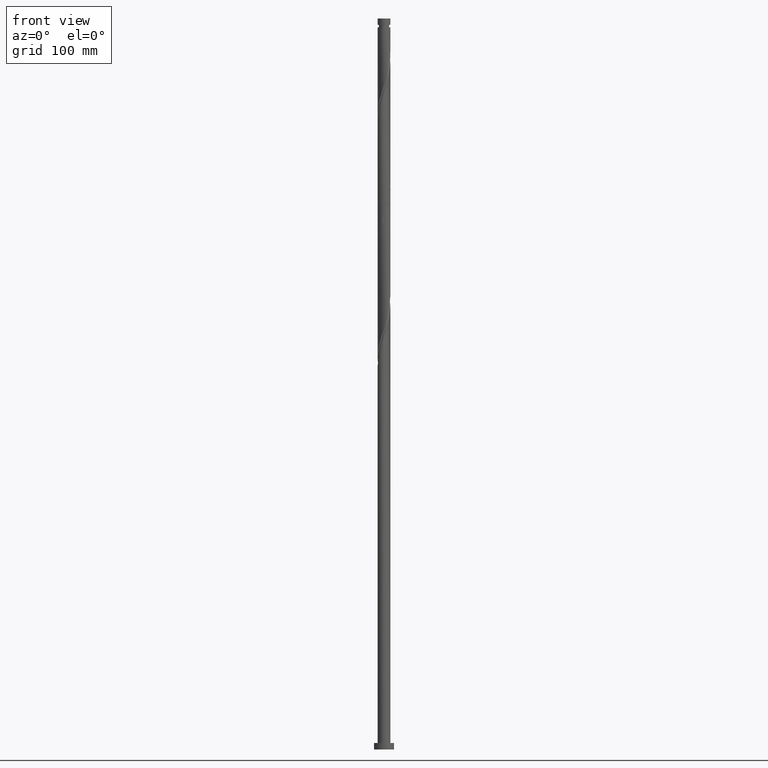
[diagram: clean part render]
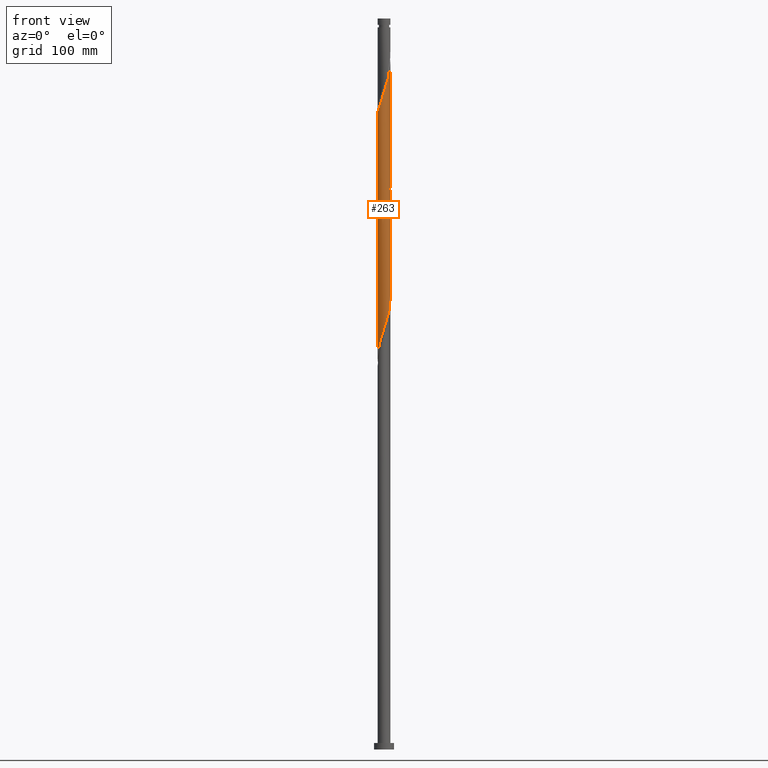
[diagram: same view with one face highlighted and labeled with its STEP entity id]
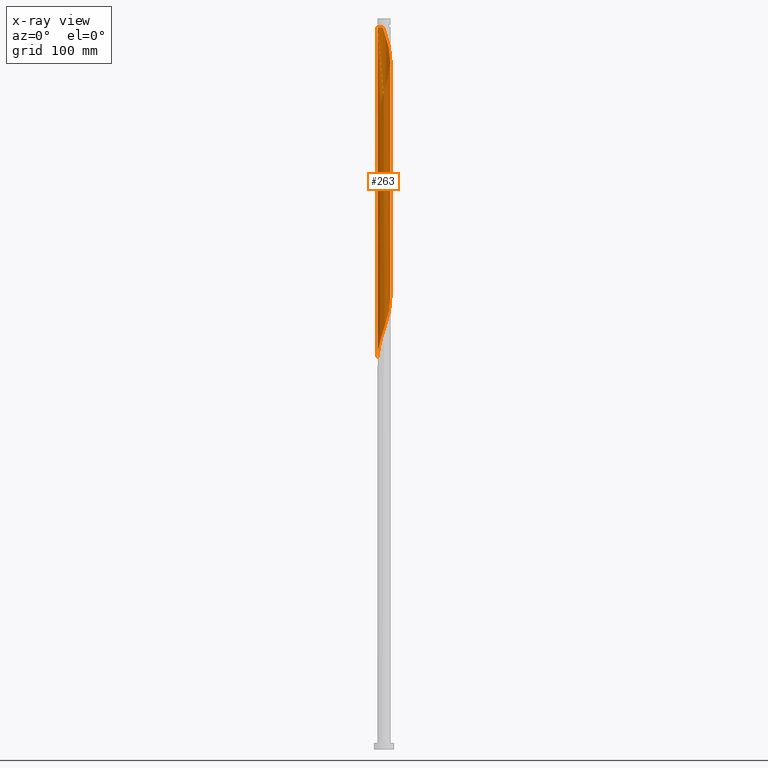
[diagram: x-ray of the same camera — body ghosted, the highlighted face saturated]
A machine part, front view. The second image highlights one B-rep face of the part: STEP entity #263.
The next image is the same camera in x-ray: the body ghosted, the highlighted face saturated — about 0% of this face is hidden behind the body in this view.
In plain terms, the highlighted cylindrical surface (bore or boss wall) has radius 7 mm, axis along (-0, -0, -1).
Its self-contained STEP definition (entity closure, byte-faithful):
#40 = CARTESIAN_POINT ( 'NONE',  ( 6.951601197858994219, -0.8217303608394779246, 625.4343165589231148 ) ) ;
#46 = CARTESIAN_POINT ( 'NONE',  ( -6.308128858367879843, -3.034387962378323866, 695.6097551554144047 ) ) ;
#49 = CARTESIAN_POINT ( 'NONE',  ( 6.290576909859326271, 3.124913522896254570, 637.7150183133089740 ) ) ;
#63 = CARTESIAN_POINT ( 'NONE',  ( 6.841759682355773364, 1.479974475756596020, 632.4518604185723234 ) ) ;
#73 = CARTESIAN_POINT ( 'NONE',  ( -6.056692303213034201, 3.557094422226541486, 683.3290534010284318 ) ) ;
#74 = CARTESIAN_POINT ( 'NONE',  ( 7.000000000000000000, -5.254906820071000449E-15, 627.9318627947997129 ) ) ;
#82 = CARTESIAN_POINT ( 'NONE',  ( 2.594768635045699767, -6.527144713810034915, 602.6272990150637270 ) ) ;
#91 = CARTESIAN_POINT ( 'NONE',  ( 1.961418218361535848, -6.744574186493524692, 725.4343165589230011 ) ) ;
#99 = CARTESIAN_POINT ( 'NONE',  ( -4.573537337246525780, -5.330966010888390727, 704.3816849799756028 ) ) ;
#103 = CARTESIAN_POINT ( 'NONE',  ( 5.690437779000081520, 4.117688704572482372, 507.8904569098003776 ) ) ;
#112 = CARTESIAN_POINT ( 'NONE',  ( 4.935078339393903946, -4.998144072401320415, 735.9606323483968708 ) ) ;
#123 = CARTESIAN_POINT ( 'NONE',  ( 4.573537337246527557, 5.330966010888388951, 771.0483516466425726 ) ) ;
#133 = CARTESIAN_POINT ( 'NONE',  ( 6.951601197858994219, -0.8217303608394779246, 492.1009832255898573 ) ) ;
#134 = CARTESIAN_POINT ( 'NONE',  ( 6.308128858367881620, 3.034387962378322090, 762.2764218220811472 ) ) ;
#145 = CARTESIAN_POINT ( 'NONE',  ( 6.721538046192510052, -1.954718980719880594, 488.5922112957653098 ) ) ;
#149 = CARTESIAN_POINT ( 'NONE',  ( 5.312758059196990068, 4.557916388486895620, 509.6448428747126513 ) ) ;
#158 = CARTESIAN_POINT ( 'NONE',  ( 6.964393863783802097, 0.9130501051561868975, 497.3641411203267353 ) ) ;
#160 = CARTESIAN_POINT ( 'NONE',  ( -4.490090583436016303, -5.370203585762758358, 579.8202814712037707 ) ) ;
#172 = CARTESIAN_POINT ( 'NONE',  ( 6.308128858367869185, -3.034387962378319425, 485.0834393659406487 ) ) ;
#185 = DIRECTION ( 'NONE',  ( -1.000000000000000000, 0.000000000000000000, 0.000000000000000000 ) ) ;
#191 = CARTESIAN_POINT ( 'NONE',  ( 7.000000000000000000, 8.572527594031473190E-16, 790.3465972606775267 ) ) ;
#214 = CARTESIAN_POINT ( 'NONE',  ( 4.935078339393898617, 4.998144072401310645, 644.7325621729586373 ) ) ;
#219 = CARTESIAN_POINT ( 'NONE',  ( -7.000000000000007994, -0.4122904922740646683, 687.3451921740742137 ) ) ;
#223 = CARTESIAN_POINT ( 'NONE',  ( 3.633712082764799511, -6.011038087053209189, 606.1360709448881607 ) ) ;
#233 = CARTESIAN_POINT ( 'NONE',  ( 5.312758059196990068, 4.557916388486895620, 642.9781762080459657 ) ) ;
#244 = CARTESIAN_POINT ( 'NONE',  ( 4.045102827478138430, 5.742263099124208736, 648.2413341027830711 ) ) ;
#254 = CARTESIAN_POINT ( 'NONE',  ( 1.961418218361540067, 6.744574186493514034, 655.2588779624318249 ) ) ;
#263 = ADVANCED_FACE ( 'NONE', ( #867 ), #1365, .T. ) ;
#266 = CARTESIAN_POINT ( 'NONE',  ( -0.3348164892539722826, 7.016006007904985964, 528.9430884887478896 ) ) ;
#271 = CARTESIAN_POINT ( 'NONE',  ( 1.485046663019567115, 6.865207847770507854, 781.5746674361159876 ) ) ;
#281 = CARTESIAN_POINT ( 'NONE',  ( 0.8245466055370141989, -6.975425813506492823, 721.9255446290986811 ) ) ;
#294 = CARTESIAN_POINT ( 'NONE',  ( 3.633712082764810170, 6.011038087053212742, 774.5571235764668927 ) ) ;
#307 = CARTESIAN_POINT ( 'NONE',  ( -0.2448650581415163785, 6.995715910705745166, 786.8378253308529793 ) ) ;
#311 = CARTESIAN_POINT ( 'NONE',  ( 3.544945141351491191, 6.036005628294960346, 516.6623867343618031 ) ) ;
#321 = EDGE_CURVE ( 'NONE', #1554, #647, #1452, .T. ) ;
#328 = ORIENTED_EDGE ( 'NONE', *, *, #775, .T. ) ;
#330 = CARTESIAN_POINT ( 'NONE',  ( -6.504851205393538116, -2.585906184626627358, 569.2939656817302421 ) ) ;
#342 = CARTESIAN_POINT ( 'NONE',  ( 0.000000000000000000, 0.000000000000000000, 790.3465972606775267 ) ) ;
#352 = CARTESIAN_POINT ( 'NONE',  ( -5.388608415490185877, 4.505479078737748999, 546.4869481378706269 ) ) ;
#376 = LINE ( 'NONE', #1545, #444 ) ;
#378 = CARTESIAN_POINT ( 'NONE',  ( -6.721538046192521598, -1.954718980719879262, 692.1009832255900847 ) ) ;
#381 = CARTESIAN_POINT ( 'NONE',  ( 2.503102836793194452, 6.537161171979611218, 653.5044919975196080 ) ) ;
#390 = CARTESIAN_POINT ( 'NONE',  ( -6.951601197858994219, 0.8217303608394785908, 692.1009832255898573 ) ) ;
#392 = CARTESIAN_POINT ( 'NONE',  ( 2.039907649032629777, -6.696176280790267832, 600.8729130501511690 ) ) ;
#402 = CARTESIAN_POINT ( 'NONE',  ( 4.490090583436019855, 5.370203585762756582, 646.4869481378702858 ) ) ;
#412 = CARTESIAN_POINT ( 'NONE',  ( 5.690437779000081520, 4.117688704572482372, 641.2237902431338625 ) ) ;
#414 = CARTESIAN_POINT ( 'NONE',  ( 5.388608415490182324, -4.505479078737752552, 613.1536148045373693 ) ) ;
#422 = CARTESIAN_POINT ( 'NONE',  ( -2.594768635045700655, 6.527144713810034915, 669.2939656817301284 ) ) ;
#423 = CARTESIAN_POINT ( 'NONE',  ( -2.039907649032629777, 6.696176280790267832, 534.2062463834845403 ) ) ;
#444 = VECTOR ( 'NONE', #682, 1000.000000000000000 ) ;
#447 = ORIENTED_EDGE ( 'NONE', *, *, #321, .F. ) ;
#449 = CARTESIAN_POINT ( 'NONE',  ( 6.841759682355785799, -1.479974475756601349, 748.2413341027829574 ) ) ;
#453 = EDGE_CURVE ( 'NONE', #2102, #2006, #2245, .T. ) ;
#460 = CARTESIAN_POINT ( 'NONE',  ( 0.3348164892539742810, 7.016006007904993957, 785.0834393659406487 ) ) ;
#461 = CARTESIAN_POINT ( 'NONE',  ( -6.964393863783801208, -0.9130501051561881187, 430.6974744536600497 ) ) ;
#471 = CARTESIAN_POINT ( 'NONE',  ( 4.981072876368362934, 4.918222544813072084, 769.2939656817303558 ) ) ;
#475 = CARTESIAN_POINT ( 'NONE',  ( 1.392982411949278188, 6.859999999999997655, 523.6799305940108979 ) ) ;
#484 = CARTESIAN_POINT ( 'NONE',  ( -4.981072876368351388, 4.918222544813064978, 544.7325621729581826 ) ) ;
#496 = CARTESIAN_POINT ( 'NONE',  ( 5.388608415490182324, -4.505479078737752552, 479.8202814712039412 ) ) ;
#497 = CARTESIAN_POINT ( 'NONE',  ( -6.992042790319737300, -0.3336729211934430506, 562.2764218220810335 ) ) ;
#509 = CARTESIAN_POINT ( 'NONE',  ( 6.992042790319737300, 0.3336729211934406636, 495.6097551554144047 ) ) ;
#510 = CARTESIAN_POINT ( 'NONE',  ( -6.308128858367869185, 3.034387962378320314, 551.7501060326072775 ) ) ;
#522 = CARTESIAN_POINT ( 'NONE',  ( -3.544945141351490747, -6.036005628294960346, 583.3290534010282045 ) ) ;
#545 = CARTESIAN_POINT ( 'NONE',  ( -7.000000000000011546, 2.328879158895086157E-15, 686.0946650598888255 ) ) ;
#557 = LINE ( 'NONE', #1631, #1099 ) ;
#566 = CARTESIAN_POINT ( 'NONE',  ( 6.721538046192510052, -1.954718980719880594, 621.9255446290986811 ) ) ;
#567 = CARTESIAN_POINT ( 'NONE',  ( -4.103624710005659537, 5.671002048970794185, 541.2237902431336352 ) ) ;
#570 = CARTESIAN_POINT ( 'NONE',  ( -7.000000000000000000, 2.567738559807420566E-15, 427.9318627947997129 ) ) ;
#580 = CARTESIAN_POINT ( 'NONE',  ( 6.883510678862315935, -1.397756458909656052, 623.6799305940107843 ) ) ;
#592 = CARTESIAN_POINT ( 'NONE',  ( 1.392982411949278188, 6.859999999999997655, 657.0132639273440418 ) ) ;
#593 = CARTESIAN_POINT ( 'NONE',  ( -0.2448650581415229843, -6.995715910705733620, 593.8553691905021878 ) ) ;
#598 = CARTESIAN_POINT ( 'NONE',  ( 2.594768635045706429, 6.527144713810041132, 778.0658955062914401 ) ) ;
#607 = CARTESIAN_POINT ( 'NONE',  ( 4.103624710005671972, 5.671002048970801290, 772.8027376115545621 ) ) ;
#621 = AXIS2_PLACEMENT_3D ( 'NONE', #2052, #703, #1399 ) ;
#631 = CARTESIAN_POINT ( 'NONE',  ( 6.056692303213043971, 3.557094422226543706, 764.0308077869933641 ) ) ;
#635 = CARTESIAN_POINT ( 'NONE',  ( 0.8245466055370164193, 6.975425813506482164, 525.4343165589233422 ) ) ;
#643 = CARTESIAN_POINT ( 'NONE',  ( 0.3348164892539703397, -7.016006007904985964, 462.2764218220810903 ) ) ;
#644 = CARTESIAN_POINT ( 'NONE',  ( 3.044787455224846173, -6.329748157465722613, 728.9430884887476623 ) ) ;
#647 = VERTEX_POINT ( 'NONE', #830 ) ;
#658 = CARTESIAN_POINT ( 'NONE',  ( 4.045102827478138430, 5.742263099124208736, 514.9080007694495862 ) ) ;
#670 = CARTESIAN_POINT ( 'NONE',  ( 4.981072876368351388, -4.918222544813064978, 478.0658955062914970 ) ) ;
#682 = DIRECTION ( 'NONE',  ( -0.000000000000000000, -0.000000000000000000, -1.000000000000000000 ) ) ;
#700 = CARTESIAN_POINT ( 'NONE',  ( -5.990507344429702563, -3.621301113734368027, 572.8027376115549032 ) ) ;
#703 = DIRECTION ( 'NONE',  ( -0.000000000000000000, -0.000000000000000000, -1.000000000000000000 ) ) ;
#715 = CARTESIAN_POINT ( 'NONE',  ( -4.981072876368351388, 4.918222544813064978, 678.0658955062915538 ) ) ;
#727 = CARTESIAN_POINT ( 'NONE',  ( 6.056692303213034201, -3.557094422226541486, 616.6623867343618031 ) ) ;
#737 = CARTESIAN_POINT ( 'NONE',  ( -6.056692303213043083, -3.557094422226544594, 697.3641411203265079 ) ) ;
#752 = CARTESIAN_POINT ( 'NONE',  ( -1.485046663019560009, 6.865207847770499860, 532.4518604185724371 ) ) ;
#759 = CARTESIAN_POINT ( 'NONE',  ( -1.392982411949238886, 6.859999999999932818, 790.3465972606775267 ) ) ;
#761 = EDGE_CURVE ( 'NONE', #647, #2126, #1085, .T. ) ;
#763 = CARTESIAN_POINT ( 'NONE',  ( 4.573537337246519563, -5.330966010888384510, 609.6448428747128219 ) ) ;
#775 = EDGE_CURVE ( 'NONE', #2102, #1313, #557, .T. ) ;
#776 = CARTESIAN_POINT ( 'NONE',  ( -2.503102836793190900, -6.537161171979612995, 586.8378253308530930 ) ) ;
#782 = CARTESIAN_POINT ( 'NONE',  ( 5.990507344429710557, -3.621301113734379129, 741.2237902431337488 ) ) ;
#793 = CARTESIAN_POINT ( 'NONE',  ( 2.039907649032639547, 6.696176280790275825, 779.8202814712038844 ) ) ;
#798 = CARTESIAN_POINT ( 'NONE',  ( 6.290576909859326271, 3.124913522896254570, 504.3816849799758302 ) ) ;
#808 = CARTESIAN_POINT ( 'NONE',  ( 6.992042790319750623, -0.3336729211934446049, 751.7501060326075049 ) ) ;
#820 = CARTESIAN_POINT ( 'NONE',  ( 6.719125500927755290, -2.046898846357010804, 746.4869481378702858 ) ) ;
#829 = CARTESIAN_POINT ( 'NONE',  ( 6.559565413522705946, -2.511681502530104915, 486.8378253308531498 ) ) ;
#830 = CARTESIAN_POINT ( 'NONE',  ( -6.999999999999999112, -2.537881134693381033E-16, 694.5985294614664554 ) ) ;
#831 = CARTESIAN_POINT ( 'NONE',  ( -5.312758059196989180, -4.557916388486897397, 576.3115095413793370 ) ) ;
#840 = CARTESIAN_POINT ( 'NONE',  ( 4.103624710005656873, -5.671002048970795961, 474.5571235764670064 ) ) ;
#851 = CARTESIAN_POINT ( 'NONE',  ( 7.000000000000000000, -5.254906820071000449E-15, 627.9318627947997129 ) ) ;
#852 = CARTESIAN_POINT ( 'NONE',  ( -3.544945141351490747, -6.036005628294960346, 449.9957200676951175 ) ) ;
#853 = CARTESIAN_POINT ( 'NONE',  ( -6.056692303213034201, 3.557094422226541486, 549.9957200676951743 ) ) ;
#867 = FACE_OUTER_BOUND ( 'NONE', #2045, .T. ) ;
#876 = CARTESIAN_POINT ( 'NONE',  ( -7.019691716855676944, 0.2457042627693022119, 560.5220358571689303 ) ) ;
#902 = CARTESIAN_POINT ( 'NONE',  ( 3.544945141351491191, 6.036005628294960346, 649.9957200676950606 ) ) ;
#912 = CARTESIAN_POINT ( 'NONE',  ( 6.559565413522705946, -2.511681502530104915, 620.1711586641864642 ) ) ;
#923 = CARTESIAN_POINT ( 'NONE',  ( 5.990507344429705228, 3.621301113734365362, 639.4694042782214183 ) ) ;
#924 = CARTESIAN_POINT ( 'NONE',  ( 6.999999999999998224, -0.4122904922740521227, 626.6813356806143247 ) ) ;
#931 = DIRECTION ( 'NONE',  ( -0.000000000000000000, -0.000000000000000000, -1.000000000000000000 ) ) ;
#943 = CARTESIAN_POINT ( 'NONE',  ( 3.044787455224844841, 6.329748157465714620, 651.7501060326075049 ) ) ;
#954 = CARTESIAN_POINT ( 'NONE',  ( 0.2448650581415219019, 6.995715910705731844, 527.1887025238355591 ) ) ;
#961 = CARTESIAN_POINT ( 'NONE',  ( 1.392982411949276633, -6.860000000000007425, 723.6799305940110116 ) ) ;
#965 = CARTESIAN_POINT ( 'NONE',  ( 4.935078339393898617, 4.998144072401310645, 511.3992288396249819 ) ) ;
#971 = CARTESIAN_POINT ( 'NONE',  ( 0.2448650581415204308, -6.995715910705745166, 720.1711586641863505 ) ) ;
#982 = CARTESIAN_POINT ( 'NONE',  ( 6.951601197859005765, 0.8217303608394754821, 755.2588779624319386 ) ) ;
#990 = CIRCLE ( 'NONE', #1814, 6.999999999999915623 ) ;
#996 = CARTESIAN_POINT ( 'NONE',  ( 3.114240358905250527, -6.269091400431619832, 471.0483516466425158 ) ) ;
#997 = CARTESIAN_POINT ( 'NONE',  ( 6.964393863783810978, -0.9130501051561915604, 749.9957200676948332 ) ) ;
#1008 = CARTESIAN_POINT ( 'NONE',  ( -4.573537337246519563, 5.330966010888384510, 542.9781762080460794 ) ) ;
#1013 = CARTESIAN_POINT ( 'NONE',  ( 4.490090583436019855, 5.370203585762756582, 513.1536148045371419 ) ) ;
#1032 = CARTESIAN_POINT ( 'NONE',  ( 6.883510678862315935, -1.397756458909656052, 490.3465972606776972 ) ) ;
#1051 = ORIENTED_EDGE ( 'NONE', *, *, #1434, .T. ) ;
#1054 = DIRECTION ( 'NONE',  ( -0.000000000000000000, -0.000000000000000000, -1.000000000000000000 ) ) ;
#1073 = CARTESIAN_POINT ( 'NONE',  ( -3.114240358905250527, 6.269091400431618943, 671.0483516466425726 ) ) ;
#1082 = CARTESIAN_POINT ( 'NONE',  ( 1.485046663019558455, -6.865207847770500749, 599.1185270852391795 ) ) ;
#1085 =( BOUNDED_CURVE ( )  B_SPLINE_CURVE ( 2, ( #1348, #1694, #390, #1242, #1439, #1797, #1976, #73, #1786, #2147, #715, #2125, #2101, #1447, #1073, #422, #2112, #1092, #1106, #1774, #1455, #1116, #592, #254, #381, #943, #902, #244, #402, #214, #233, #412, #923, #49, #1592, #1930, #63, #1423, #1272, #1262, #1283 ),
 .UNSPECIFIED., .F., .T. ) 
 B_SPLINE_CURVE_WITH_KNOTS ( ( 3, 2, 2, 2, 2, 2, 2, 2, 2, 2, 2, 2, 2, 2, 2, 2, 2, 2, 2, 2, 3 ),
 ( 0.4295295809515956020, 0.4342105263157894912, 0.4407894736842105088, 0.4473684210526315819, 0.4539473684210526550, 0.4605263157894736725, 0.4671052631578947456, 0.4736842105263157632, 0.4802631578947368363, 0.4868421052631579093, 0.4934210526315789269, 0.5000000000000000000, 0.5065789473684210176, 0.5131578947368421462, 0.5197368421052631637, 0.5263157894736841813, 0.5328947368421053099, 0.5394736842105263275, 0.5460526315789473450, 0.5526315789473684736, 0.5545295809515956575 ),
 .UNSPECIFIED. ) 
 CURVE ( )  GEOMETRIC_REPRESENTATION_ITEM ( )  RATIONAL_B_SPLINE_CURVE ( ( 0.9078162034606285236, 0.9068816855934357379, 0.9090909090909574664, 0.9059859027333843073, 0.9090909090909574664, 0.9059859027333843073, 0.9090909090909574664, 0.9059859027333843073, 0.9090909090909574664, 0.9059859027333843073, 0.9090909090909574664, 0.9059859027333843073, 0.9090909090909574664, 0.9059859027333843073, 0.9090909090909574664, 0.9059859027333843073, 0.9090909090909574664, 0.9059859027333843073, 0.9090909090909574664, 0.9059859027333843073, 0.9090909090909574664, 0.9059859027333843073, 0.9090909090909574664, 0.9059859027333843073, 0.9090909090909574664, 0.9059859027333843073, 0.9090909090909574664, 0.9059859027333843073, 0.9090909090909574664, 0.9059859027333843073, 0.9090909090909574664, 0.9059859027333843073, 0.9090909090909574664, 0.9059859027333843073, 0.9090909090909574664, 0.9059859027333843073, 0.9090909090909574664, 0.9059859027333843073, 0.9090909090909574664, 0.9081951262309060358, 0.9078162034606285236 ) ) 
 REPRESENTATION_ITEM ( '' )  );
#1089 = CARTESIAN_POINT ( 'NONE',  ( -3.044787455224847506, -6.329748157465714620, 585.0834393659407624 ) ) ;
#1092 = CARTESIAN_POINT ( 'NONE',  ( -1.485046663019560009, 6.865207847770499860, 665.7851937519056946 ) ) ;
#1099 = VECTOR ( 'NONE', #1412, 1000.000000000000000 ) ;
#1106 = CARTESIAN_POINT ( 'NONE',  ( -0.9099315761367657851, 6.940606927837740692, 664.0308077869932504 ) ) ;
#1116 = CARTESIAN_POINT ( 'NONE',  ( 0.8245466055370164193, 6.975425813506482164, 658.7676498922568271 ) ) ;
#1117 = CARTESIAN_POINT ( 'NONE',  ( -1.392982411949276855, -6.859999999999997655, 590.3465972606775267 ) ) ;
#1125 = CARTESIAN_POINT ( 'NONE',  ( 4.045102827478138430, -5.742263099124219394, 732.4518604185720960 ) ) ;
#1148 = CARTESIAN_POINT ( 'NONE',  ( 7.019691716855686714, 0.2457042627692964110, 753.5044919975194944 ) ) ;
#1153 = CARTESIAN_POINT ( 'NONE',  ( 6.841759682355773364, 1.479974475756596020, 499.1185270852388953 ) ) ;
#1162 = CARTESIAN_POINT ( 'NONE',  ( -1.392982411949238886, 6.859999999999932818, 790.3465972606775267 ) ) ;
#1163 = CARTESIAN_POINT ( 'NONE',  ( -6.992042790319737300, -0.3336729211934430506, 428.9430884887476054 ) ) ;
#1173 = CARTESIAN_POINT ( 'NONE',  ( 6.290576909859332488, -3.124913522896260787, 742.9781762080460794 ) ) ;
#1184 = CARTESIAN_POINT ( 'NONE',  ( 1.485046663019558455, -6.865207847770500749, 465.7851937519056946 ) ) ;
#1208 = CARTESIAN_POINT ( 'NONE',  ( 4.573537337246519563, -5.330966010888384510, 476.3115095413793370 ) ) ;
#1219 = CARTESIAN_POINT ( 'NONE',  ( -7.000000000000011546, 2.328879158895086157E-15, 686.0946650598888255 ) ) ;
#1228 = CARTESIAN_POINT ( 'NONE',  ( -6.964393863783801208, -0.9130501051561881187, 564.0308077869933641 ) ) ;
#1239 = CARTESIAN_POINT ( 'NONE',  ( -6.951601197859005765, -0.8217303608394779246, 688.5922112957654235 ) ) ;
#1242 = CARTESIAN_POINT ( 'NONE',  ( -6.883510678862315935, 1.397756458909655386, 690.3465972606779815 ) ) ;
#1262 = CARTESIAN_POINT ( 'NONE',  ( 7.000000000000000888, 0.1669313397161597268, 628.4381858132398975 ) ) ;
#1272 = CARTESIAN_POINT ( 'NONE',  ( 6.992042790319737300, 0.3336729211934406636, 628.9430884887475486 ) ) ;
#1283 = CARTESIAN_POINT ( 'NONE',  ( 7.000000000000000000, -5.254906820071000449E-15, 627.9318627947997129 ) ) ;
#1289 = CARTESIAN_POINT ( 'NONE',  ( 3.114240358905258077, 6.269091400431626937, 776.3115095413794506 ) ) ;
#1293 = CARTESIAN_POINT ( 'NONE',  ( -2.594768635045700655, 6.527144713810034915, 535.9606323483970982 ) ) ;
#1298 = CARTESIAN_POINT ( 'NONE',  ( -4.981072876368361158, -4.918222544813072084, 702.6272990150636133 ) ) ;
#1308 = VECTOR ( 'NONE', #931, 1000.000000000000000 ) ;
#1309 = CARTESIAN_POINT ( 'NONE',  ( 0.9099315761367704480, 6.940606927837753126, 783.3290534010284318 ) ) ;
#1313 = VERTEX_POINT ( 'NONE', #570 ) ;
#1314 = CARTESIAN_POINT ( 'NONE',  ( 6.719125500927751737, 2.046898846356998369, 500.8729130501513396 ) ) ;
#1321 = CARTESIAN_POINT ( 'NONE',  ( -3.633712082764806173, -6.011038087053214518, 707.8904569098003776 ) ) ;
#1326 = CARTESIAN_POINT ( 'NONE',  ( 5.990507344429705228, 3.621301113734365362, 506.1360709448881039 ) ) ;
#1334 = CARTESIAN_POINT ( 'NONE',  ( -2.503102836793190900, -6.537161171979612995, 453.5044919975197217 ) ) ;
#1335 = CARTESIAN_POINT ( 'NONE',  ( 3.544945141351494744, -6.036005628294971892, 730.6974744536601065 ) ) ;
#1345 = VERTEX_POINT ( 'NONE', #191 ) ;
#1347 = CARTESIAN_POINT ( 'NONE',  ( 0.9099315761367654520, -6.940606927837741580, 464.0308077869932504 ) ) ;
#1348 = CARTESIAN_POINT ( 'NONE',  ( -6.999999999999999112, -2.537881134693381526E-16, 694.5985294614664554 ) ) ;
#1362 = CARTESIAN_POINT ( 'NONE',  ( -3.044787455224847506, -6.329748157465714620, 451.7501060326075049 ) ) ;
#1365 = CYLINDRICAL_SURFACE ( 'NONE', #621, 7.000000000000000000 ) ;
#1372 = CARTESIAN_POINT ( 'NONE',  ( -5.690437779000080631, -4.117688704572484149, 441.2237902431338625 ) ) ;
#1375 = EDGE_CURVE ( 'NONE', #2126, #1313, #1906, .T. ) ;
#1376 = CARTESIAN_POINT ( 'NONE',  ( 3.633712082764799511, -6.011038087053209189, 472.8027376115548464 ) ) ;
#1396 = CARTESIAN_POINT ( 'NONE',  ( -6.841759682355774252, -1.479974475756593799, 565.7851937519055809 ) ) ;
#1399 = DIRECTION ( 'NONE',  ( -1.000000000000000000, 0.000000000000000000, 0.000000000000000000 ) ) ;
#1412 = DIRECTION ( 'NONE',  ( -0.000000000000000000, -0.000000000000000000, -1.000000000000000000 ) ) ;
#1423 = CARTESIAN_POINT ( 'NONE',  ( 6.964393863783802097, 0.9130501051561868975, 630.6974744536599928 ) ) ;
#1424 = CARTESIAN_POINT ( 'NONE',  ( 6.308128858367869185, -3.034387962378319425, 618.4167726992740199 ) ) ;
#1434 = EDGE_CURVE ( 'NONE', #1554, #2006, #990, .T. ) ;
#1439 = CARTESIAN_POINT ( 'NONE',  ( -6.721538046192510052, 1.954718980719877486, 688.5922112957651962 ) ) ;
#1447 = CARTESIAN_POINT ( 'NONE',  ( -3.633712082764800400, 6.011038087053206525, 672.8027376115549032 ) ) ;
#1452 = LINE ( 'NONE', #2132, #1308 ) ;
#1455 = CARTESIAN_POINT ( 'NONE',  ( 0.2448650581415219019, 6.995715910705731844, 660.5220358571687029 ) ) ;
#1456 = CARTESIAN_POINT ( 'NONE',  ( 0.3348164892539703397, -7.016006007904985964, 595.6097551554146321 ) ) ;
#1464 = CARTESIAN_POINT ( 'NONE',  ( -0.3348164892539764459, -7.016006007904995734, 718.4167726992739063 ) ) ;
#1471 = CARTESIAN_POINT ( 'NONE',  ( 6.504851205393546110, -2.585906184626633131, 744.7325621729584100 ) ) ;
#1485 = CARTESIAN_POINT ( 'NONE',  ( 6.504851205393538116, 2.585906184626626469, 502.6272990150635565 ) ) ;
#1492 = CARTESIAN_POINT ( 'NONE',  ( -1.485046663019566004, -6.865207847770507854, 714.9080007694494725 ) ) ;
#1503 = CARTESIAN_POINT ( 'NONE',  ( -4.103624710005668419, -5.671002048970803067, 706.1360709448880471 ) ) ;
#1515 = CARTESIAN_POINT ( 'NONE',  ( -5.990507344429702563, -3.621301113734368027, 439.4694042782214751 ) ) ;
#1518 = CARTESIAN_POINT ( 'NONE',  ( -6.719125500927749961, -2.046898846357002810, 567.5395797168180252 ) ) ;
#1530 = CARTESIAN_POINT ( 'NONE',  ( 2.594768635045699767, -6.527144713810034915, 469.2939656817302989 ) ) ;
#1543 = CARTESIAN_POINT ( 'NONE',  ( -4.935078339393898617, -4.998144072401310645, 444.7325621729583531 ) ) ;
#1545 = CARTESIAN_POINT ( 'NONE',  ( 7.000000000000000000, 8.572527594031473190E-16, 800.0000000000000000 ) ) ;
#1554 = VERTEX_POINT ( 'NONE', #1879 ) ;
#1592 = CARTESIAN_POINT ( 'NONE',  ( 6.504851205393538116, 2.585906184626626469, 635.9606323483968708 ) ) ;
#1597 = CARTESIAN_POINT ( 'NONE',  ( -6.559565413522717492, -2.511681502530101806, 693.8553691905021878 ) ) ;
#1612 = CARTESIAN_POINT ( 'NONE',  ( 5.722650359351608707, -4.031286750482145465, 614.9080007694494725 ) ) ;
#1631 = CARTESIAN_POINT ( 'NONE',  ( -7.000000000000000000, 0.000000000000000000, 800.0000000000000000 ) ) ;
#1638 = CARTESIAN_POINT ( 'NONE',  ( 6.721538046192521598, 1.954718980719880150, 758.7676498922564861 ) ) ;
#1644 = ORIENTED_EDGE ( 'NONE', *, *, #453, .F. ) ;
#1650 = CARTESIAN_POINT ( 'NONE',  ( 6.883510678862323928, 1.397756458909654498, 757.0132639273442692 ) ) ;
#1653 = ORIENTED_EDGE ( 'NONE', *, *, #761, .F. ) ;
#1658 = EDGE_CURVE ( 'NONE', #1345, #2126, #376, .T. ) ;
#1660 = CARTESIAN_POINT ( 'NONE',  ( 4.490090583436021632, -5.370203585762769904, 734.2062463834846540 ) ) ;
#1663 = ORIENTED_EDGE ( 'NONE', *, *, #1658, .F. ) ;
#1672 = CARTESIAN_POINT ( 'NONE',  ( 5.690437779000085960, -4.117688704572492142, 739.4694042782215320 ) ) ;
#1683 = CARTESIAN_POINT ( 'NONE',  ( -0.8245466055370328506, 6.975425813506493711, 788.5922112957653098 ) ) ;
#1693 = CARTESIAN_POINT ( 'NONE',  ( 7.019691716855676944, -0.2457042627693060699, 493.8553691905021878 ) ) ;
#1694 = CARTESIAN_POINT ( 'NONE',  ( -6.999999999999998224, 0.4122904922740482370, 693.3480023472809535 ) ) ;
#1704 = CARTESIAN_POINT ( 'NONE',  ( -1.961418218361538957, -6.744574186493514034, 455.2588779624320523 ) ) ;
#1715 = CARTESIAN_POINT ( 'NONE',  ( -6.290576909859326271, -3.124913522896255902, 437.7150183133092582 ) ) ;
#1717 = CARTESIAN_POINT ( 'NONE',  ( -6.883510678862315935, 1.397756458909655386, 557.0132639273442692 ) ) ;
#1774 = CARTESIAN_POINT ( 'NONE',  ( -0.3348164892539722826, 7.016006007904985964, 662.2764218220811472 ) ) ;
#1786 = CARTESIAN_POINT ( 'NONE',  ( -5.722650359351610483, 4.031286750482143688, 681.5746674361159876 ) ) ;
#1787 = CARTESIAN_POINT ( 'NONE',  ( -3.114240358905250527, 6.269091400431618943, 537.7150183133092014 ) ) ;
#1797 = CARTESIAN_POINT ( 'NONE',  ( -6.559565413522707722, 2.511681502530100918, 686.8378253308532067 ) ) ;
#1798 = CARTESIAN_POINT ( 'NONE',  ( -1.961418218361538957, -6.744574186493514034, 588.5922112957654235 ) ) ;
#1800 = CARTESIAN_POINT ( 'NONE',  ( -3.633712082764800400, 6.011038087053206525, 539.4694042782214183 ) ) ;
#1810 = CARTESIAN_POINT ( 'NONE',  ( -0.9099315761367657851, 6.940606927837740692, 530.6974744536599928 ) ) ;
#1814 = AXIS2_PLACEMENT_3D ( 'NONE', #342, #1054, #185 ) ;
#1827 = CARTESIAN_POINT ( 'NONE',  ( 5.722650359351619365, 4.031286750482150794, 765.7851937519058083 ) ) ;
#1830 = ORIENTED_EDGE ( 'NONE', *, *, #1658, .T. ) ;
#1841 = CARTESIAN_POINT ( 'NONE',  ( -0.9099315761367696709, -6.940606927837753126, 716.6623867343619168 ) ) ;
#1850 = CARTESIAN_POINT ( 'NONE',  ( -6.841759682355774252, -1.479974475756593799, 432.4518604185722666 ) ) ;
#1852 = CARTESIAN_POINT ( 'NONE',  ( -5.722650359351620253, -4.031286750482149017, 699.1185270852390659 ) ) ;
#1854 = CARTESIAN_POINT ( 'NONE',  ( -7.000000000000000888, -0.1669313397161624746, 428.4381858132397838 ) ) ;
#1858 = CARTESIAN_POINT ( 'NONE',  ( 3.044787455224844841, 6.329748157465714620, 518.4167726992741336 ) ) ;
#1863 = ORIENTED_EDGE ( 'NONE', *, *, #1375, .F. ) ;
#1865 = CARTESIAN_POINT ( 'NONE',  ( -0.2448650581415229843, -6.995715910705733620, 460.5220358571687029 ) ) ;
#1876 = CARTESIAN_POINT ( 'NONE',  ( -1.392982411949276855, -6.859999999999997655, 457.0132639273443260 ) ) ;
#1877 = CARTESIAN_POINT ( 'NONE',  ( -4.935078339393898617, -4.998144072401310645, 578.0658955062915538 ) ) ;
#1879 = CARTESIAN_POINT ( 'NONE',  ( -6.999999999999915623, 0.000000000000000000, 790.3465972606775267 ) ) ;
#1887 = CARTESIAN_POINT ( 'NONE',  ( -4.045102827478137542, -5.742263099124208736, 581.5746674361163286 ) ) ;
#1902 = CARTESIAN_POINT ( 'NONE',  ( -5.722650359351610483, 4.031286750482143688, 548.2413341027827300 ) ) ;
#1906 =( BOUNDED_CURVE ( )  B_SPLINE_CURVE ( 2, ( #74, #924, #40, #580, #566, #912, #1424, #727, #1612, #414, #1942, #763, #2148, #223, #2159, #82, #392, #1082, #1952, #1456, #593, #1977, #1117, #1798, #776, #1089, #522, #1887, #160, #1877, #831, #2061, #700, #2224, #330, #1518, #1396, #1228, #497, #876, #1916, #1717, #2210, #2247, #510, #853, #1902, #352, #484, #1008, #567, #1800, #1787, #1293, #423, #752, #1810, #266, #954, #635, #475, #2018, #2214, #1858, #311, #658, #1013, #965, #149, #103, #1326, #798, #1485, #1314, #1153, #158, #509, #1693, #133, #1032, #145, #829, #172, #2222, #2197, #496, #670, #1208, #840, #1376, #996, #1530, #2060, #1184, #1347, #643, #1865, #2025, #1876, #1704, #1334, #1362, #852, #2208, #2048, #1543, #2235, #1372, #1515, #1715, #2195, #2046, #1850, #461, #1163, #1854, #2120 ),
 .UNSPECIFIED., .F., .T. ) 
 B_SPLINE_CURVE_WITH_KNOTS ( ( 3, 2, 2, 2, 2, 2, 2, 2, 2, 2, 2, 2, 2, 2, 2, 2, 2, 2, 2, 2, 2, 2, 2, 2, 2, 2, 2, 2, 2, 2, 2, 2, 2, 2, 2, 2, 2, 2, 2, 2, 2, 2, 2, 2, 2, 2, 2, 2, 2, 2, 2, 2, 2, 2, 2, 2, 2, 2, 3 ),
 ( 0.5545295809515956575, 0.5592105263157894912, 0.5657894736842105088, 0.5723684210526315264, 0.5789473684210526550, 0.5855263157894736725, 0.5921052631578946901, 0.5986842105263158187, 0.6052631578947368363, 0.6118421052631578538, 0.6184210526315789824, 0.6250000000000000000, 0.6315789473684210176, 0.6381578947368421462, 0.6447368421052631637, 0.6513157894736841813, 0.6578947368421053099, 0.6644736842105263275, 0.6710526315789473450, 0.6776315789473684736, 0.6842105263157894912, 0.6907894736842105088, 0.6973684210526315264, 0.7039473684210526550, 0.7105263157894736725, 0.7171052631578946901, 0.7236842105263158187, 0.7302631578947368363, 0.7368421052631578538, 0.7434210526315789824, 0.7500000000000000000, 0.7565789473684210176, 0.7631578947368421462, 0.7697368421052631637, 0.7763157894736841813, 0.7828947368421053099, 0.7894736842105263275, 0.7960526315789473450, 0.8026315789473684736, 0.8092105263157894912, 0.8157894736842105088, 0.8223684210526315264, 0.8289473684210526550, 0.8355263157894736725, 0.8421052631578946901, 0.8486842105263158187, 0.8552631578947368363, 0.8618421052631578538, 0.8684210526315789824, 0.8750000000000000000, 0.8815789473684210176, 0.8881578947368421462, 0.8947368421052631637, 0.9013157894736841813, 0.9078947368421053099, 0.9144736842105263275, 0.9210526315789473450, 0.9276315789473684736, 0.9295295809515956575 ),
 .UNSPECIFIED. ) 
 CURVE ( )  GEOMETRIC_REPRESENTATION_ITEM ( )  RATIONAL_B_SPLINE_CURVE ( ( 0.9078162034606285236, 0.9068816855934357379, 0.9090909090909574664, 0.9059859027333843073, 0.9090909090909574664, 0.9059859027333843073, 0.9090909090909574664, 0.9059859027333843073, 0.9090909090909574664, 0.9059859027333843073, 0.9090909090909574664, 0.9059859027333843073, 0.9090909090909574664, 0.9059859027333843073, 0.9090909090909574664, 0.9059859027333843073, 0.9090909090909574664, 0.9059859027333843073, 0.9090909090909574664, 0.9059859027333843073, 0.9090909090909574664, 0.9059859027333843073, 0.9090909090909574664, 0.9059859027333843073, 0.9090909090909574664, 0.9059859027333843073, 0.9090909090909574664, 0.9059859027333843073, 0.9090909090909574664, 0.9059859027333843073, 0.9090909090909574664, 0.9059859027333843073, 0.9090909090909574664, 0.9059859027333843073, 0.9090909090909574664, 0.9059859027333843073, 0.9090909090909574664, 0.9059859027333843073, 0.9090909090909574664, 0.9059859027333843073, 0.9090909090909574664, 0.9059859027333843073, 0.9090909090909574664, 0.9059859027333843073, 0.9090909090909574664, 0.9059859027333843073, 0.9090909090909574664, 0.9059859027333843073, 0.9090909090909574664, 0.9059859027333843073, 0.9090909090909574664, 0.9059859027333843073, 0.9090909090909574664, 0.9059859027333843073, 0.9090909090909574664, 0.9059859027333843073, 0.9090909090909574664, 0.9059859027333843073, 0.9090909090909574664, 0.9059859027333843073, 0.9090909090909574664, 0.9059859027333843073, 0.9090909090909574664, 0.9059859027333843073, 0.9090909090909574664, 0.9059859027333843073, 0.9090909090909574664, 0.9059859027333843073, 0.9090909090909574664, 0.9059859027333843073, 0.9090909090909574664, 0.9059859027333843073, 0.9090909090909574664, 0.9059859027333843073, 0.9090909090909574664, 0.9059859027333843073, 0.9090909090909574664, 0.9059859027333843073, 0.9090909090909574664, 0.9059859027333843073, 0.9090909090909574664, 0.9059859027333843073, 0.9090909090909574664, 0.9059859027333843073, 0.9090909090909574664, 0.9059859027333843073, 0.9090909090909574664, 0.9059859027333843073, 0.9090909090909574664, 0.9059859027333843073, 0.9090909090909574664, 0.9059859027333843073, 0.9090909090909574664, 0.9059859027333843073, 0.9090909090909574664, 0.9059859027333843073, 0.9090909090909574664, 0.9059859027333843073, 0.9090909090909574664, 0.9059859027333843073, 0.9090909090909574664, 0.9059859027333843073, 0.9090909090909574664, 0.9059859027333843073, 0.9090909090909574664, 0.9059859027333843073, 0.9090909090909574664, 0.9059859027333843073, 0.9090909090909574664, 0.9059859027333843073, 0.9090909090909574664, 0.9059859027333843073, 0.9090909090909574664, 0.9059859027333843073, 0.9090909090909574664, 0.9081951262309060358, 0.9078162034606285236 ) ) 
 REPRESENTATION_ITEM ( '' )  );
#1916 = CARTESIAN_POINT ( 'NONE',  ( -6.951601197858994219, 0.8217303608394785908, 558.7676498922564861 ) ) ;
#1926 = CARTESIAN_POINT ( 'NONE',  ( -6.883510678862323928, -1.397756458909655164, 690.3465972606776404 ) ) ;
#1930 = CARTESIAN_POINT ( 'NONE',  ( 6.719125500927751737, 2.046898846356998369, 634.2062463834847676 ) ) ;
#1942 = CARTESIAN_POINT ( 'NONE',  ( 4.981072876368351388, -4.918222544813064978, 611.3992288396249251 ) ) ;
#1952 = CARTESIAN_POINT ( 'NONE',  ( 0.9099315761367654520, -6.940606927837741580, 597.3641411203266216 ) ) ;
#1976 = CARTESIAN_POINT ( 'NONE',  ( -6.308128858367869185, 3.034387962378320314, 685.0834393659405350 ) ) ;
#1977 = CARTESIAN_POINT ( 'NONE',  ( -0.8245466055370187508, -6.975425813506482164, 592.1009832255898573 ) ) ;
#1984 = CARTESIAN_POINT ( 'NONE',  ( -5.388608415490194758, -4.505479078737752552, 700.8729130501510554 ) ) ;
#2002 = CARTESIAN_POINT ( 'NONE',  ( -3.114240358905257189, -6.269091400431627825, 709.6448428747124808 ) ) ;
#2006 = VERTEX_POINT ( 'NONE', #759 ) ;
#2014 = CARTESIAN_POINT ( 'NONE',  ( -2.039907649032636439, -6.696176280790276714, 713.1536148045373693 ) ) ;
#2018 = CARTESIAN_POINT ( 'NONE',  ( 1.961418218361540067, 6.744574186493514034, 521.9255446290986811 ) ) ;
#2025 = CARTESIAN_POINT ( 'NONE',  ( -0.8245466055370187508, -6.975425813506482164, 458.7676498922564861 ) ) ;
#2026 = CARTESIAN_POINT ( 'NONE',  ( 5.388608415490195647, 4.505479078737749887, 767.5395797168177978 ) ) ;
#2045 = EDGE_LOOP ( 'NONE', ( #447, #1051, #1644, #328, #1863, #1663, #1830, #1653 ) ) ;
#2046 = CARTESIAN_POINT ( 'NONE',  ( -6.719125500927749961, -2.046898846357002810, 434.2062463834846540 ) ) ;
#2048 = CARTESIAN_POINT ( 'NONE',  ( -4.490090583436016303, -5.370203585762758358, 446.4869481378705132 ) ) ;
#2052 = CARTESIAN_POINT ( 'NONE',  ( 0.000000000000000000, 0.000000000000000000, 800.0000000000000000 ) ) ;
#2060 = CARTESIAN_POINT ( 'NONE',  ( 2.039907649032629777, -6.696176280790267832, 467.5395797168179115 ) ) ;
#2061 = CARTESIAN_POINT ( 'NONE',  ( -5.690437779000080631, -4.117688704572484149, 574.5571235764673474 ) ) ;
#2101 = CARTESIAN_POINT ( 'NONE',  ( -4.103624710005659537, 5.671002048970794185, 674.5571235764670064 ) ) ;
#2102 = VERTEX_POINT ( 'NONE', #1219 ) ;
#2112 = CARTESIAN_POINT ( 'NONE',  ( -2.039907649032629777, 6.696176280790267832, 667.5395797168180252 ) ) ;
#2120 = CARTESIAN_POINT ( 'NONE',  ( -7.000000000000000000, 2.567738559807420566E-15, 427.9318627947997129 ) ) ;
#2125 = CARTESIAN_POINT ( 'NONE',  ( -4.573537337246519563, 5.330966010888384510, 676.3115095413794506 ) ) ;
#2126 = VERTEX_POINT ( 'NONE', #851 ) ;
#2132 = CARTESIAN_POINT ( 'NONE',  ( -7.000000000000000000, 0.000000000000000000, 800.0000000000000000 ) ) ;
#2147 = CARTESIAN_POINT ( 'NONE',  ( -5.388608415490185877, 4.505479078737748999, 679.8202814712038844 ) ) ;
#2148 = CARTESIAN_POINT ( 'NONE',  ( 4.103624710005656873, -5.671002048970795961, 607.8904569098003776 ) ) ;
#2155 = CARTESIAN_POINT ( 'NONE',  ( 5.312758059196996285, -4.557916388486903614, 737.7150183133089740 ) ) ;
#2159 = CARTESIAN_POINT ( 'NONE',  ( 3.114240358905250527, -6.269091400431619832, 604.3816849799758302 ) ) ;
#2165 = CARTESIAN_POINT ( 'NONE',  ( 2.503102836793192232, -6.537161171979625429, 727.1887025238355591 ) ) ;
#2186 = CARTESIAN_POINT ( 'NONE',  ( 6.559565413522718380, 2.511681502530098697, 760.5220358571687029 ) ) ;
#2195 = CARTESIAN_POINT ( 'NONE',  ( -6.504851205393538116, -2.585906184626627358, 435.9606323483968708 ) ) ;
#2197 = CARTESIAN_POINT ( 'NONE',  ( 5.722650359351608707, -4.031286750482145465, 481.5746674361161013 ) ) ;
#2198 = CARTESIAN_POINT ( 'NONE',  ( -2.594768635045705540, -6.527144713810041132, 711.3992288396248114 ) ) ;
#2208 = CARTESIAN_POINT ( 'NONE',  ( -4.045102827478137542, -5.742263099124208736, 448.2413341027829574 ) ) ;
#2210 = CARTESIAN_POINT ( 'NONE',  ( -6.721538046192510052, 1.954718980719877486, 555.2588779624318249 ) ) ;
#2214 = CARTESIAN_POINT ( 'NONE',  ( 2.503102836793194452, 6.537161171979611218, 520.1711586641863505 ) ) ;
#2222 = CARTESIAN_POINT ( 'NONE',  ( 6.056692303213034201, -3.557094422226541486, 483.3290534010284887 ) ) ;
#2224 = CARTESIAN_POINT ( 'NONE',  ( -6.290576909859326271, -3.124913522896255902, 571.0483516466423453 ) ) ;
#2235 = CARTESIAN_POINT ( 'NONE',  ( -5.312758059196989180, -4.557916388486897397, 442.9781762080459657 ) ) ;
#2245 =( BOUNDED_CURVE ( )  B_SPLINE_CURVE ( 2, ( #545, #219, #1239, #1926, #378, #1597, #46, #737, #1852, #1984, #1298, #99, #1503, #1321, #2002, #2198, #2014, #1492, #1841, #1464, #971, #281, #961, #91, #2165, #644, #1335, #1125, #1660, #112, #2155, #1672, #782, #1173, #1471, #820, #449, #997, #808, #1148, #982, #1650, #1638, #2186, #134, #631, #1827, #2026, #471, #123, #607, #294, #1289, #598, #793, #271, #1309, #460, #307, #1683, #1162 ),
 .UNSPECIFIED., .F., .T. ) 
 B_SPLINE_CURVE_WITH_KNOTS ( ( 3, 2, 2, 2, 2, 2, 2, 2, 2, 2, 2, 2, 2, 2, 2, 2, 2, 2, 2, 2, 2, 2, 2, 2, 2, 2, 2, 2, 2, 2, 3 ),
 ( 0.5545295809515957686, 0.5592105263157894912, 0.5657894736842105088, 0.5723684210526316374, 0.5789473684210526550, 0.5855263157894736725, 0.5921052631578946901, 0.5986842105263157077, 0.6052631578947369473, 0.6118421052631580759, 0.6184210526315790935, 0.6250000000000001110, 0.6315789473684211286, 0.6381578947368421462, 0.6447368421052632748, 0.6513157894736844034, 0.6578947368421054209, 0.6644736842105264385, 0.6710526315789474561, 0.6776315789473684736, 0.6842105263157896022, 0.6907894736842106198, 0.6973684210526318594, 0.7039473684210528770, 0.7105263157894738946, 0.7171052631578949121, 0.7236842105263159297, 0.7302631578947370583, 0.7368421052631581869, 0.7434210526315792045, 0.7500000000000002220 ),
 .UNSPECIFIED. ) 
 CURVE ( )  GEOMETRIC_REPRESENTATION_ITEM ( )  RATIONAL_B_SPLINE_CURVE ( ( 0.9078162034606345188, 0.9068816855934420662, 0.9090909090909634616, 0.9059859027333906356, 0.9090909090909634616, 0.9059859027333906356, 0.9090909090909634616, 0.9059859027333906356, 0.9090909090909634616, 0.9059859027333906356, 0.9090909090909634616, 0.9059859027333906356, 0.9090909090909634616, 0.9059859027333906356, 0.9090909090909634616, 0.9059859027333906356, 0.9090909090909634616, 0.9059859027333906356, 0.9090909090909634616, 0.9059859027333906356, 0.9090909090909634616, 0.9059859027333906356, 0.9090909090909634616, 0.9059859027333906356, 0.9090909090909634616, 0.9059859027333906356, 0.9090909090909634616, 0.9059859027333906356, 0.9090909090909634616, 0.9059859027333906356, 0.9090909090909634616, 0.9059859027333906356, 0.9090909090909634616, 0.9059859027333906356, 0.9090909090909634616, 0.9059859027333906356, 0.9090909090909634616, 0.9059859027333906356, 0.9090909090909634616, 0.9059859027333906356, 0.9090909090909634616, 0.9059859027333906356, 0.9090909090909634616, 0.9059859027333906356, 0.9090909090909634616, 0.9059859027333906356, 0.9090909090909634616, 0.9059859027333906356, 0.9090909090909634616, 0.9059859027333906356, 0.9090909090909634616, 0.9059859027333906356, 0.9090909090909634616, 0.9059859027333906356, 0.9090909090909634616, 0.9059859027333906356, 0.9090909090909634616, 0.9059859027333906356, 0.9090909090909634616, 0.9059859027333905246, 0.9090909090909635726 ) ) 
 REPRESENTATION_ITEM ( '' )  );
#2247 = CARTESIAN_POINT ( 'NONE',  ( -6.559565413522707722, 2.511681502530100918, 553.5044919975198354 ) ) ;